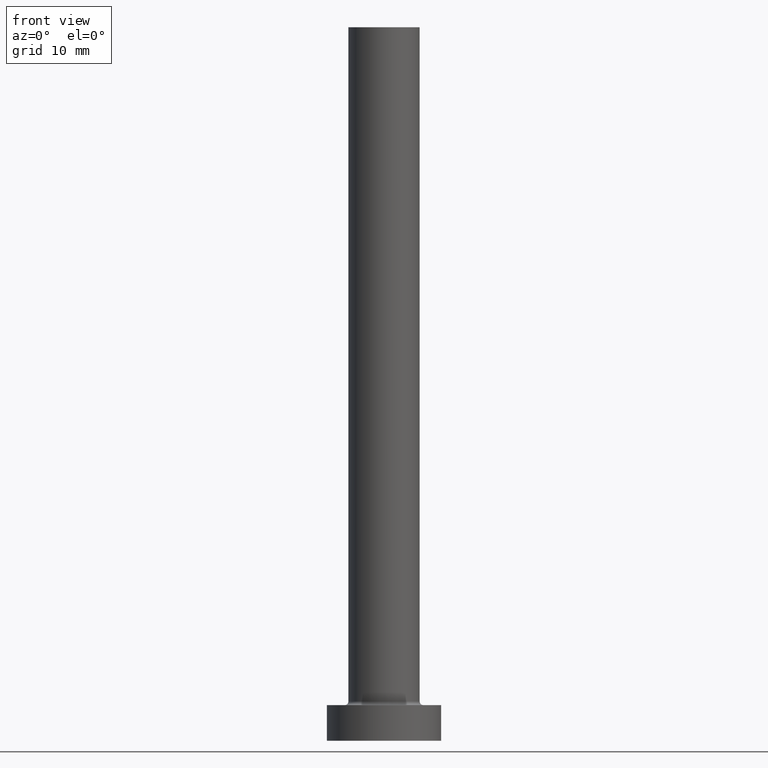
[diagram: clean part render]
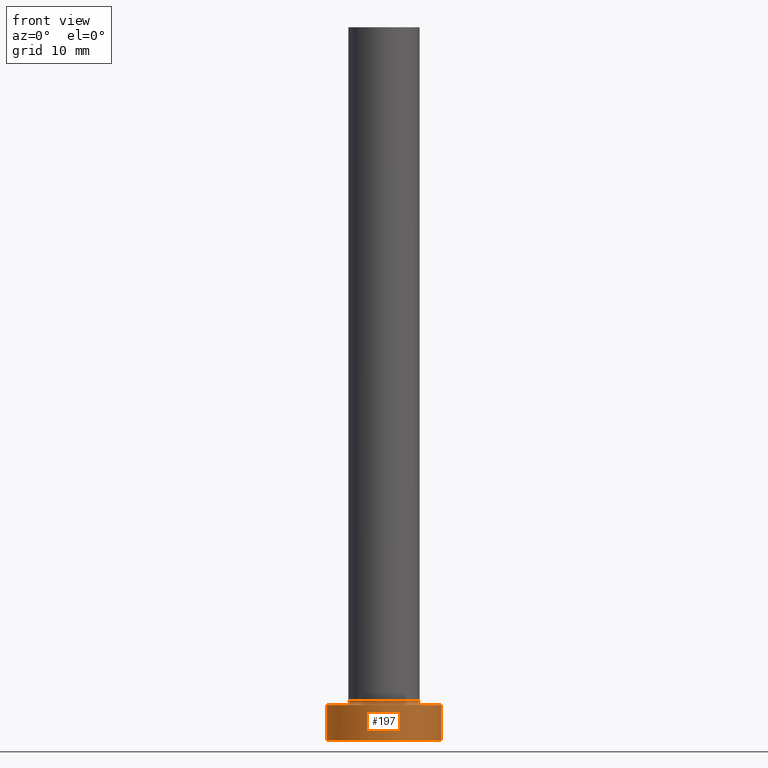
[diagram: same view with one face highlighted and labeled with its STEP entity id]
A machine part, front view. The second image highlights one B-rep face of the part: STEP entity #197.
In plain terms, the highlighted cylindrical surface (partial cylindrical patch) has radius 8 mm, axis along (-0, -0, -1).
Its self-contained STEP definition (entity closure, byte-faithful):
#8 = DIRECTION ( 'NONE',  ( 0.000000000000000000, 0.000000000000000000, 1.000000000000000000 ) ) ;
#14 = LINE ( 'NONE', #58, #351 ) ;
#16 = VERTEX_POINT ( 'NONE', #456 ) ;
#49 = CIRCLE ( 'NONE', #108, 8.000000000000000000 ) ;
#57 = EDGE_CURVE ( 'NONE', #310, #231, #49, .T. ) ;
#58 = CARTESIAN_POINT ( 'NONE',  ( -8.000000000000000000, 0.000000000000000000, 5.000000000000000000 ) ) ;
#63 = ORIENTED_EDGE ( 'NONE', *, *, #57, .F. ) ;
#74 = DIRECTION ( 'NONE',  ( -1.000000000000000000, 0.000000000000000000, 0.000000000000000000 ) ) ;
#95 = CYLINDRICAL_SURFACE ( 'NONE', #252, 8.000000000000000000 ) ;
#104 = ORIENTED_EDGE ( 'NONE', *, *, #423, .T. ) ;
#106 = ORIENTED_EDGE ( 'NONE', *, *, #207, .F. ) ;
#108 = AXIS2_PLACEMENT_3D ( 'NONE', #431, #111, #398 ) ;
#111 = DIRECTION ( 'NONE',  ( 0.000000000000000000, 0.000000000000000000, 1.000000000000000000 ) ) ;
#126 = FACE_OUTER_BOUND ( 'NONE', #188, .T. ) ;
#136 = VECTOR ( 'NONE', #175, 1000.000000000000000 ) ;
#146 = CIRCLE ( 'NONE', #389, 8.000000000000000000 ) ;
#152 = DIRECTION ( 'NONE',  ( 1.000000000000000000, 0.000000000000000000, 0.000000000000000000 ) ) ;
#160 = VERTEX_POINT ( 'NONE', #280 ) ;
#175 = DIRECTION ( 'NONE',  ( -0.000000000000000000, -0.000000000000000000, -1.000000000000000000 ) ) ;
#185 = CARTESIAN_POINT ( 'NONE',  ( 0.000000000000000000, 0.000000000000000000, 0.000000000000000000 ) ) ;
#188 = EDGE_LOOP ( 'NONE', ( #106, #63, #271, #104 ) ) ;
#193 = DIRECTION ( 'NONE',  ( -0.000000000000000000, -0.000000000000000000, -1.000000000000000000 ) ) ;
#197 = ADVANCED_FACE ( 'NONE', ( #126 ), #95, .T. ) ;
#207 = EDGE_CURVE ( 'NONE', #231, #16, #363, .T. ) ;
#231 = VERTEX_POINT ( 'NONE', #391 ) ;
#242 = CARTESIAN_POINT ( 'NONE',  ( 0.000000000000000000, 0.000000000000000000, 5.000000000000000000 ) ) ;
#252 = AXIS2_PLACEMENT_3D ( 'NONE', #242, #359, #74 ) ;
#271 = ORIENTED_EDGE ( 'NONE', *, *, #413, .T. ) ;
#280 = CARTESIAN_POINT ( 'NONE',  ( -8.000000000000000000, 0.000000000000000000, 0.000000000000000000 ) ) ;
#310 = VERTEX_POINT ( 'NONE', #335 ) ;
#335 = CARTESIAN_POINT ( 'NONE',  ( -8.000000000000000000, 0.000000000000000000, 5.000000000000000000 ) ) ;
#351 = VECTOR ( 'NONE', #193, 1000.000000000000000 ) ;
#359 = DIRECTION ( 'NONE',  ( -0.000000000000000000, -0.000000000000000000, -1.000000000000000000 ) ) ;
#361 = CARTESIAN_POINT ( 'NONE',  ( 8.000000000000000000, 9.797174393178825657E-16, 5.000000000000000000 ) ) ;
#363 = LINE ( 'NONE', #361, #136 ) ;
#389 = AXIS2_PLACEMENT_3D ( 'NONE', #185, #8, #152 ) ;
#391 = CARTESIAN_POINT ( 'NONE',  ( 8.000000000000000000, 9.797174393178825657E-16, 5.000000000000000000 ) ) ;
#398 = DIRECTION ( 'NONE',  ( 1.000000000000000000, 0.000000000000000000, 0.000000000000000000 ) ) ;
#413 = EDGE_CURVE ( 'NONE', #310, #160, #14, .T. ) ;
#423 = EDGE_CURVE ( 'NONE', #160, #16, #146, .T. ) ;
#431 = CARTESIAN_POINT ( 'NONE',  ( 0.000000000000000000, 0.000000000000000000, 5.000000000000000000 ) ) ;
#456 = CARTESIAN_POINT ( 'NONE',  ( 8.000000000000000000, 9.797174393178825657E-16, 0.000000000000000000 ) ) ;